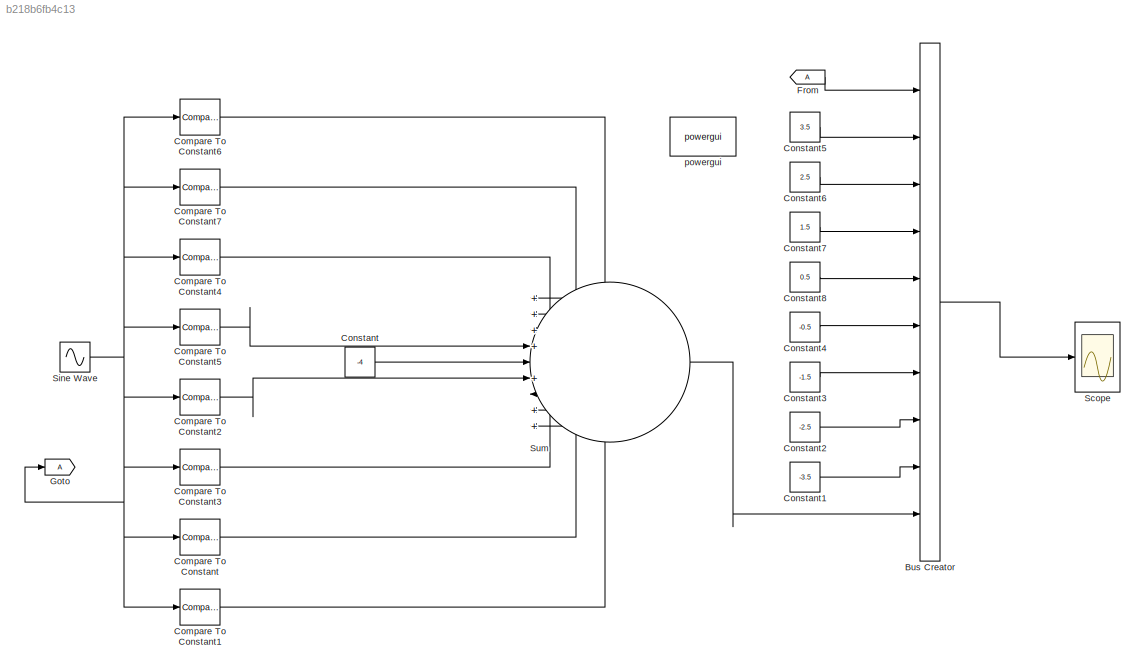
MODEL slx_b218b6fb4c13
KIND model
CONFIG AbsTol = auto
CONFIG FixedStep = auto
CONFIG MaxStep = auto
CONFIG MinStep = auto
CONFIG RelTol = 1e-3
CONFIG SampleTimeConstraint = Unconstrained
CONFIG Solver = VariableStepAuto
CONFIG SolverMode = Auto
CONFIG SolverName = VariableStepAuto
CONFIG StartTime = 0.0
CONFIG StopTime = 0.02
BLOCK [BusCreator] Bus Creator
  DisplayOption = bar
  InheritFromInputs = on
  Inputs = 10
  Ports = [10, 1]
BLOCK [Reference] Compare To Constant  REF=simulink/Logic and Bit
Operations/Compare
To Constant
  Ports = [1, 1]
  SourceBlock = simulink/Logic and Bit\nOperations/Compare\nTo Constant
  SourceType = Compare To Constant
BLOCK [Reference] Compare To Constant1  REF=simulink/Logic and Bit
Operations/Compare
To Constant
  Ports = [1, 1]
  SourceBlock = simulink/Logic and Bit\nOperations/Compare\nTo Constant
  SourceType = Compare To Constant
BLOCK [Reference] Compare To Constant2  REF=simulink/Logic and Bit
Operations/Compare
To Constant
  Ports = [1, 1]
  SourceBlock = simulink/Logic and Bit\nOperations/Compare\nTo Constant
  SourceType = Compare To Constant
BLOCK [Reference] Compare To Constant3  REF=simulink/Logic and Bit
Operations/Compare
To Constant
  Ports = [1, 1]
  SourceBlock = simulink/Logic and Bit\nOperations/Compare\nTo Constant
  SourceType = Compare To Constant
BLOCK [Reference] Compare To Constant4  REF=simulink/Logic and Bit
Operations/Compare
To Constant
  Ports = [1, 1]
  SourceBlock = simulink/Logic and Bit\nOperations/Compare\nTo Constant
  SourceType = Compare To Constant
BLOCK [Reference] Compare To Constant5  REF=simulink/Logic and Bit
Operations/Compare
To Constant
  Ports = [1, 1]
  SourceBlock = simulink/Logic and Bit\nOperations/Compare\nTo Constant
  SourceType = Compare To Constant
BLOCK [Reference] Compare To Constant6  REF=simulink/Logic and Bit
Operations/Compare
To Constant
  Ports = [1, 1]
  SourceBlock = simulink/Logic and Bit\nOperations/Compare\nTo Constant
  SourceType = Compare To Constant
BLOCK [Reference] Compare To Constant7  REF=simulink/Logic and Bit
Operations/Compare
To Constant
  Ports = [1, 1]
  SourceBlock = simulink/Logic and Bit\nOperations/Compare\nTo Constant
  SourceType = Compare To Constant
BLOCK [Constant] Constant
  Value = -4
BLOCK [Constant] Constant1
  Value = -3.5
BLOCK [Constant] Constant2
  Value = -2.5
BLOCK [Constant] Constant3
  Value = -1.5
BLOCK [Constant] Constant4
  Value = -0.5
BLOCK [Constant] Constant5
  Value = 3.5
BLOCK [Constant] Constant6
  Value = 2.5
BLOCK [Constant] Constant7
  Value = 1.5
BLOCK [Constant] Constant8
  Value = 0.5
BLOCK [From] From
BLOCK [Goto] Goto
BLOCK [Scope] Scope
  Ports = [1]
  ScopeSpecificationString = Simulink.scopes.TimeScopeBlockCfg('CurrentConfiguration', extmgr.ConfigurationSet(extmgr.Configuration('Core','General UI',true),extmgr.Configuration('Core','Source UI',true),extmgr.Configuration('Sources','WiredSimulink',true),extmgr.Configuration('Visuals','Time Domain',true,'SerializedDisplays',{struct('MinYLimReal','-4.99998','MaxYLimReal','4.99998','YLabelReal','','MinYLimMag','0.00000','MaxY...<+1581ch>
BLOCK [Sin] Sine Wave
  Amplitude = 4
  Frequency = 2*pi*50
  Ports = [0, 1]
  SampleTime = 0
BLOCK [Sum] Sum
  IconShape = round
  InputSameDT = off
  Inputs = ++++|+|++++
  OutDataTypeStr = Inherit: Inherit via internal rule
  Ports = [9, 1]
  SaturateOnIntegerOverflow = off
BLOCK [Reference] powergui  REF=powerlib/powergui
  Ports = []
  Priority = 1
  SourceBlock = powerlib/powergui
  SourceType = PSB option menu block
  UserDataPersistent = on
LINE Bus Creator:1 -> Scope:1
LINE Compare To Constant1:1 -> Sum:9
LINE Compare To Constant2:1 -> Sum:6
LINE Compare To Constant3:1 -> Sum:7
LINE Compare To Constant4:1 -> Sum:3
LINE Compare To Constant5:1 -> Sum:4
LINE Compare To Constant6:1 -> Sum:1
LINE Compare To Constant7:1 -> Sum:2
LINE Compare To Constant:1 -> Sum:8
LINE Constant1:1 -> Bus Creator:9
LINE Constant2:1 -> Bus Creator:8
LINE Constant3:1 -> Bus Creator:7
LINE Constant4:1 -> Bus Creator:6
LINE Constant5:1 -> Bus Creator:2
LINE Constant6:1 -> Bus Creator:3
LINE Constant7:1 -> Bus Creator:4
LINE Constant8:1 -> Bus Creator:5
LINE Constant:1 -> Sum:5
LINE From:1 -> Bus Creator:1
NET Sine Wave:1 -> Compare To Constant1:1, Compare To Constant2:1, Compare To Constant3:1, Compare To Constant4:1, Compare To Constant5:1, Compare To Constant6:1, Compare To Constant7:1, Compare To Constant:1, Goto:1
LINE Sum:1 -> Bus Creator:10
note: NET lines group one-source signal fan-out (src -> all destinations, sorted); 1:1 wires keep LINE
